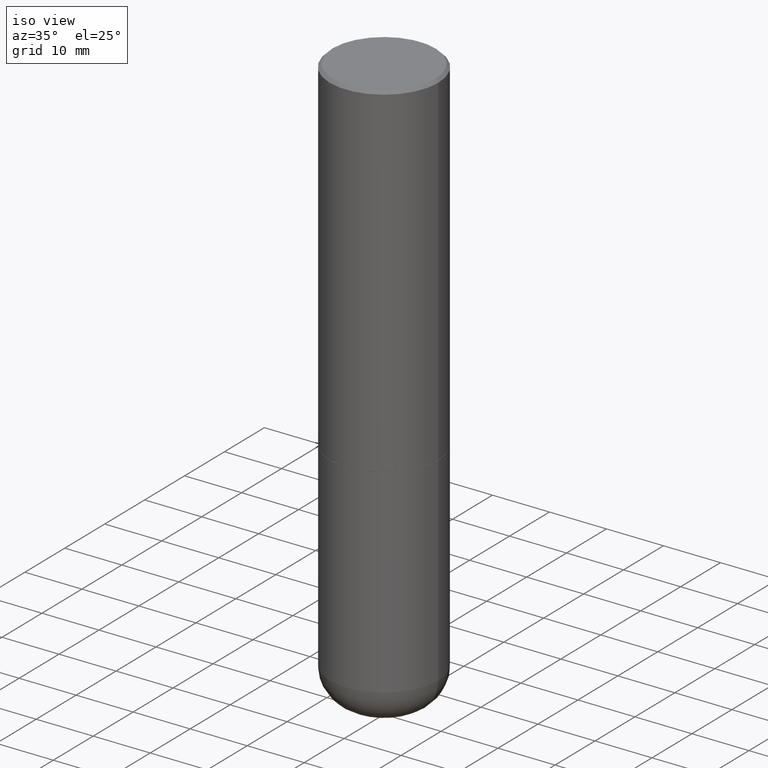
[diagram: clean part render]
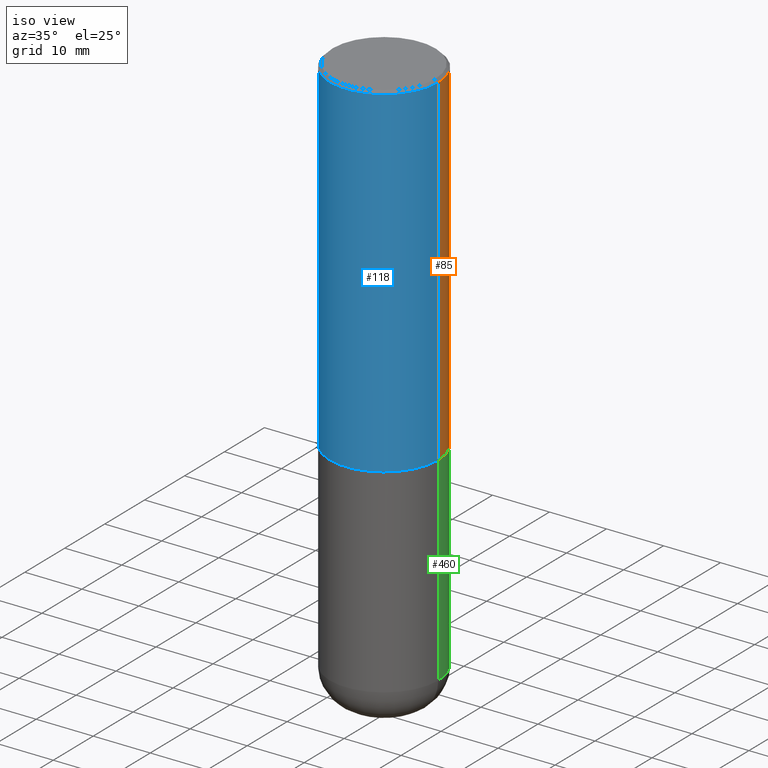
[diagram: same view with three faces highlighted in distinct colors, each labeled with its STEP entity id]
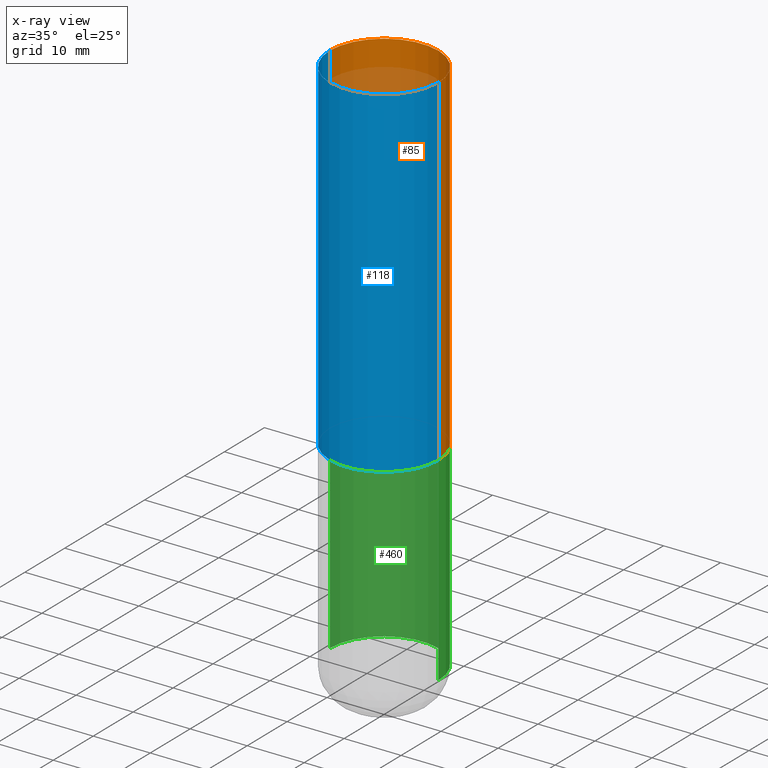
[diagram: x-ray of the same camera — body ghosted, the three highlighted faces saturated]
A machine part, iso view with three faces highlighted in distinct colors.
The next image is the same camera in x-ray (body ghosted, the three faces saturated) — at least one of them is partly hidden behind the body in this view.
Their STEP definitions:

[orange] entity #85 — the highlighted cylindrical surface (partial cylindrical patch) has radius 9.525 mm, axis along (-0, 0, 1).
#9 = AXIS2_PLACEMENT_3D ( 'NONE', #378, #37, #445 ) ;
#19 = VERTEX_POINT ( 'NONE', #246 ) ;
#37 = DIRECTION ( 'NONE',  ( -2.445468806185136597E-29, 3.491481338843145583E-15, 1.000000000000000000 ) ) ;
#57 = VECTOR ( 'NONE', #302, 39.37007874015748143 ) ;
#72 = CARTESIAN_POINT ( 'NONE',  ( 0.000000000000000000, 0.000000000000000000, 0.000000000000000000 ) ) ;
#79 = LINE ( 'NONE', #109, #57 ) ;
#85 = ADVANCED_FACE ( 'NONE', ( #214 ), #178, .T. ) ;
#104 = VERTEX_POINT ( 'NONE', #450 ) ;
#109 = CARTESIAN_POINT ( 'NONE',  ( 0.3749999999999995559, -2.618611004132346467E-15, 1.828566290923473680E-29 ) ) ;
#129 = EDGE_CURVE ( 'NONE', #190, #307, #437, .T. ) ;
#131 = EDGE_CURVE ( 'NONE', #19, #307, #174, .T. ) ;
#153 = AXIS2_PLACEMENT_3D ( 'NONE', #72, #482, #176 ) ;
#174 = LINE ( 'NONE', #323, #345 ) ;
#176 = DIRECTION ( 'NONE',  ( 1.000000000000000000, -6.982962677686265133E-15, 4.876176775795935793E-29 ) ) ;
#178 = CYLINDRICAL_SURFACE ( 'NONE', #153, 0.3749999999999995559 ) ;
#190 = VERTEX_POINT ( 'NONE', #337 ) ;
#214 = FACE_OUTER_BOUND ( 'NONE', #274, .T. ) ;
#246 = CARTESIAN_POINT ( 'NONE',  ( -0.3750000000000000555, -1.514767903494864183E-15, -2.373999999999999666 ) ) ;
#261 = AXIS2_PLACEMENT_3D ( 'NONE', #477, #286, #473 ) ;
#268 = EDGE_CURVE ( 'NONE', #104, #190, #79, .T. ) ;
#274 = EDGE_LOOP ( 'NONE', ( #370, #409, #486, #365 ) ) ;
#286 = DIRECTION ( 'NONE',  ( -2.445468806185136597E-29, 3.491481338843145583E-15, 1.000000000000000000 ) ) ;
#302 = DIRECTION ( 'NONE',  ( -2.445468806185136877E-29, 3.491481338843145188E-15, 1.000000000000000000 ) ) ;
#307 = VERTEX_POINT ( 'NONE', #484 ) ;
#323 = CARTESIAN_POINT ( 'NONE',  ( -0.3749999999999995559, 2.664535259100372542E-15, -1.844600658845587356E-29 ) ) ;
#337 = CARTESIAN_POINT ( 'NONE',  ( 0.3749999999999991673, -2.642516375941182112E-15, -0.02000000000000020858 ) ) ;
#345 = VECTOR ( 'NONE', #408, 39.37007874015748143 ) ;
#353 = CIRCLE ( 'NONE', #261, 0.3750000000000000555 ) ;
#365 = ORIENTED_EDGE ( 'NONE', *, *, #268, .F. ) ;
#370 = ORIENTED_EDGE ( 'NONE', *, *, #457, .T. ) ;
#378 = CARTESIAN_POINT ( 'NONE',  ( 4.890937612370324831E-31, -6.982962677686364332E-17, -0.02000000000000020858 ) ) ;
#408 = DIRECTION ( 'NONE',  ( -2.445468806185136877E-29, 3.491481338843145188E-15, 1.000000000000000000 ) ) ;
#409 = ORIENTED_EDGE ( 'NONE', *, *, #131, .T. ) ;
#437 = CIRCLE ( 'NONE', #9, 0.3749999999999991673 ) ;
#445 = DIRECTION ( 'NONE',  ( 1.000000000000000000, -6.982962677686266711E-15, 0.000000000000000000 ) ) ;
#450 = CARTESIAN_POINT ( 'NONE',  ( 0.3750000000000000555, -1.090738770254597870E-14, -2.373999999999999666 ) ) ;
#457 = EDGE_CURVE ( 'NONE', #104, #19, #353, .T. ) ;
#473 = DIRECTION ( 'NONE',  ( 1.000000000000000000, -6.982962677686266711E-15, 0.000000000000000000 ) ) ;
#477 = CARTESIAN_POINT ( 'NONE',  ( 5.805542945883513814E-29, -8.288776698413627111E-15, -2.373999999999999666 ) ) ;
#482 = DIRECTION ( 'NONE',  ( -2.445468806185136597E-29, 3.491481338843145583E-15, 1.000000000000000000 ) ) ;
#484 = CARTESIAN_POINT ( 'NONE',  ( -0.3749999999999991673, 2.548781377355480407E-15, -0.02000000000000020858 ) ) ;
#486 = ORIENTED_EDGE ( 'NONE', *, *, #129, .F. ) ;

[blue] entity #118 — the highlighted cylindrical surface (partial cylindrical patch) has radius 9.525 mm, axis along (-0, 0, 1).
#19 = VERTEX_POINT ( 'NONE', #246 ) ;
#40 = CARTESIAN_POINT ( 'NONE',  ( 4.890937612370324831E-31, -6.982962677686364332E-17, -0.02000000000000020858 ) ) ;
#47 = ORIENTED_EDGE ( 'NONE', *, *, #131, .F. ) ;
#54 = EDGE_LOOP ( 'NONE', ( #47, #151, #289, #462 ) ) ;
#57 = VECTOR ( 'NONE', #302, 39.37007874015748143 ) ;
#79 = LINE ( 'NONE', #109, #57 ) ;
#88 = DIRECTION ( 'NONE',  ( 1.000000000000000000, -6.982962677686266711E-15, 0.000000000000000000 ) ) ;
#104 = VERTEX_POINT ( 'NONE', #450 ) ;
#108 = AXIS2_PLACEMENT_3D ( 'NONE', #40, #188, #340 ) ;
#109 = CARTESIAN_POINT ( 'NONE',  ( 0.3749999999999995559, -2.618611004132346467E-15, 1.828566290923473680E-29 ) ) ;
#114 = CARTESIAN_POINT ( 'NONE',  ( 5.805542945883513814E-29, -8.288776698413627111E-15, -2.373999999999999666 ) ) ;
#118 = ADVANCED_FACE ( 'NONE', ( #221 ), #288, .T. ) ;
#131 = EDGE_CURVE ( 'NONE', #19, #307, #174, .T. ) ;
#151 = ORIENTED_EDGE ( 'NONE', *, *, #346, .T. ) ;
#152 = DIRECTION ( 'NONE',  ( -2.445468806185136597E-29, 3.491481338843145583E-15, 1.000000000000000000 ) ) ;
#174 = LINE ( 'NONE', #323, #345 ) ;
#188 = DIRECTION ( 'NONE',  ( -2.445468806185136597E-29, 3.491481338843145583E-15, 1.000000000000000000 ) ) ;
#190 = VERTEX_POINT ( 'NONE', #337 ) ;
#221 = FACE_OUTER_BOUND ( 'NONE', #54, .T. ) ;
#229 = CIRCLE ( 'NONE', #291, 0.3750000000000000555 ) ;
#246 = CARTESIAN_POINT ( 'NONE',  ( -0.3750000000000000555, -1.514767903494864183E-15, -2.373999999999999666 ) ) ;
#257 = AXIS2_PLACEMENT_3D ( 'NONE', #295, #329, #338 ) ;
#268 = EDGE_CURVE ( 'NONE', #104, #190, #79, .T. ) ;
#288 = CYLINDRICAL_SURFACE ( 'NONE', #257, 0.3749999999999995559 ) ;
#289 = ORIENTED_EDGE ( 'NONE', *, *, #268, .T. ) ;
#291 = AXIS2_PLACEMENT_3D ( 'NONE', #114, #152, #88 ) ;
#295 = CARTESIAN_POINT ( 'NONE',  ( 0.000000000000000000, 0.000000000000000000, 0.000000000000000000 ) ) ;
#302 = DIRECTION ( 'NONE',  ( -2.445468806185136877E-29, 3.491481338843145188E-15, 1.000000000000000000 ) ) ;
#307 = VERTEX_POINT ( 'NONE', #484 ) ;
#323 = CARTESIAN_POINT ( 'NONE',  ( -0.3749999999999995559, 2.664535259100372542E-15, -1.844600658845587356E-29 ) ) ;
#324 = EDGE_CURVE ( 'NONE', #307, #190, #472, .T. ) ;
#329 = DIRECTION ( 'NONE',  ( -2.445468806185136597E-29, 3.491481338843145583E-15, 1.000000000000000000 ) ) ;
#337 = CARTESIAN_POINT ( 'NONE',  ( 0.3749999999999991673, -2.642516375941182112E-15, -0.02000000000000020858 ) ) ;
#338 = DIRECTION ( 'NONE',  ( 1.000000000000000000, -6.982962677686265133E-15, 4.876176775795935793E-29 ) ) ;
#340 = DIRECTION ( 'NONE',  ( 1.000000000000000000, -6.982962677686266711E-15, 0.000000000000000000 ) ) ;
#345 = VECTOR ( 'NONE', #408, 39.37007874015748143 ) ;
#346 = EDGE_CURVE ( 'NONE', #19, #104, #229, .T. ) ;
#408 = DIRECTION ( 'NONE',  ( -2.445468806185136877E-29, 3.491481338843145188E-15, 1.000000000000000000 ) ) ;
#450 = CARTESIAN_POINT ( 'NONE',  ( 0.3750000000000000555, -1.090738770254597870E-14, -2.373999999999999666 ) ) ;
#462 = ORIENTED_EDGE ( 'NONE', *, *, #324, .F. ) ;
#472 = CIRCLE ( 'NONE', #108, 0.3749999999999991673 ) ;
#484 = CARTESIAN_POINT ( 'NONE',  ( -0.3749999999999991673, 2.548781377355480407E-15, -0.02000000000000020858 ) ) ;

[green] entity #460 — the highlighted cylindrical surface (partial cylindrical patch) has radius 9.525 mm, axis along (-0, 0, 1).
#5 = ORIENTED_EDGE ( 'NONE', *, *, #201, .T. ) ;
#30 = EDGE_CURVE ( 'NONE', #200, #158, #305, .T. ) ;
#35 = CARTESIAN_POINT ( 'NONE',  ( 0.3749999999999999445, -2.618611004132349622E-15, 1.828566290923475642E-29 ) ) ;
#65 = CARTESIAN_POINT ( 'NONE',  ( 0.000000000000000000, 0.000000000000000000, 0.000000000000000000 ) ) ;
#73 = AXIS2_PLACEMENT_3D ( 'NONE', #65, #372, #168 ) ;
#76 = CARTESIAN_POINT ( 'NONE',  ( 9.170531302183962062E-29, -1.309308825688951538E-14, -3.750009519233956645 ) ) ;
#80 = VECTOR ( 'NONE', #314, 39.37007874015748143 ) ;
#90 = ORIENTED_EDGE ( 'NONE', *, *, #30, .F. ) ;
#101 = CARTESIAN_POINT ( 'NONE',  ( 5.807988414689699417E-29, -8.292268179752470118E-15, -2.375000000000000000 ) ) ;
#112 = DIRECTION ( 'NONE',  ( -2.445468806185136597E-29, 3.491481338843145583E-15, 1.000000000000000000 ) ) ;
#132 = DIRECTION ( 'NONE',  ( -2.445468806185136597E-29, 3.491481338843145583E-15, 1.000000000000000000 ) ) ;
#143 = AXIS2_PLACEMENT_3D ( 'NONE', #101, #132, #183 ) ;
#147 = CARTESIAN_POINT ( 'NONE',  ( 0.3749999999999999445, -1.571169926102186224E-14, -3.750009519233956645 ) ) ;
#158 = VERTEX_POINT ( 'NONE', #423 ) ;
#166 = EDGE_LOOP ( 'NONE', ( #5, #367, #90, #425 ) ) ;
#168 = DIRECTION ( 'NONE',  ( 1.000000000000000000, -6.982962677686266711E-15, 4.876176775795935793E-29 ) ) ;
#172 = CYLINDRICAL_SURFACE ( 'NONE', #73, 0.3749999999999999445 ) ;
#183 = DIRECTION ( 'NONE',  ( 1.000000000000000000, -6.982962677686266711E-15, 0.000000000000000000 ) ) ;
#191 = CARTESIAN_POINT ( 'NONE',  ( -0.3749999999999999445, -8.028142959220617840E-15, -3.750009519233956645 ) ) ;
#197 = VECTOR ( 'NONE', #256, 39.37007874015748143 ) ;
#200 = VERTEX_POINT ( 'NONE', #382 ) ;
#201 = EDGE_CURVE ( 'NONE', #239, #206, #399, .T. ) ;
#206 = VERTEX_POINT ( 'NONE', #191 ) ;
#235 = LINE ( 'NONE', #394, #80 ) ;
#236 = AXIS2_PLACEMENT_3D ( 'NONE', #76, #112, #259 ) ;
#239 = VERTEX_POINT ( 'NONE', #147 ) ;
#242 = FACE_OUTER_BOUND ( 'NONE', #166, .T. ) ;
#256 = DIRECTION ( 'NONE',  ( -2.445468806185136877E-29, 3.491481338843145188E-15, 1.000000000000000000 ) ) ;
#259 = DIRECTION ( 'NONE',  ( 1.000000000000000000, -6.982962677686263555E-15, 0.000000000000000000 ) ) ;
#303 = EDGE_CURVE ( 'NONE', #239, #200, #413, .T. ) ;
#305 = CIRCLE ( 'NONE', #143, 0.3750000000000000555 ) ;
#314 = DIRECTION ( 'NONE',  ( -2.445468806185136877E-29, 3.491481338843145188E-15, 1.000000000000000000 ) ) ;
#349 = EDGE_CURVE ( 'NONE', #206, #158, #235, .T. ) ;
#367 = ORIENTED_EDGE ( 'NONE', *, *, #349, .T. ) ;
#372 = DIRECTION ( 'NONE',  ( -2.445468806185136597E-29, 3.491481338843145583E-15, 1.000000000000000000 ) ) ;
#382 = CARTESIAN_POINT ( 'NONE',  ( 0.3750000000000000555, -1.091087918388482013E-14, -2.375000000000000000 ) ) ;
#394 = CARTESIAN_POINT ( 'NONE',  ( -0.3749999999999999445, 2.664535259100375303E-15, -1.844600658845589318E-29 ) ) ;
#399 = CIRCLE ( 'NONE', #236, 0.3749999999999999445 ) ;
#413 = LINE ( 'NONE', #35, #197 ) ;
#423 = CARTESIAN_POINT ( 'NONE',  ( -0.3750000000000000555, -8.028142959220617840E-15, -2.375000000000000000 ) ) ;
#425 = ORIENTED_EDGE ( 'NONE', *, *, #303, .F. ) ;
#460 = ADVANCED_FACE ( 'NONE', ( #242 ), #172, .T. ) ;